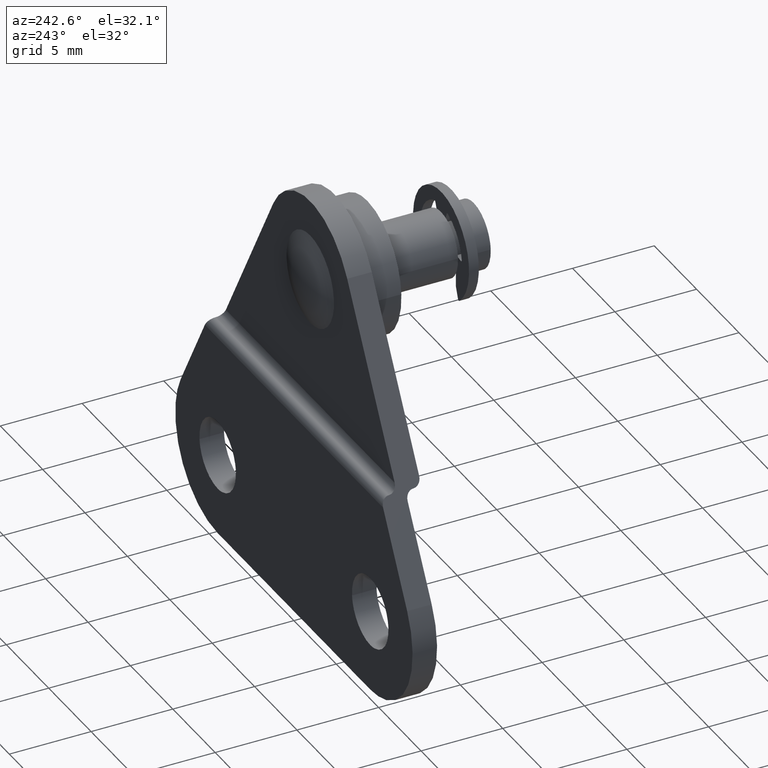
[diagram: clean part render]
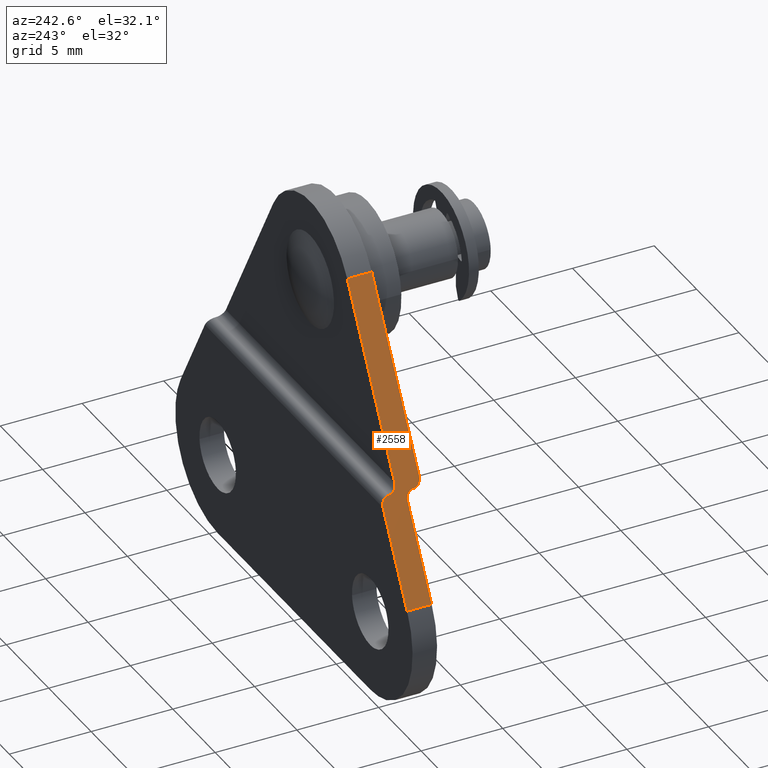
[diagram: same view with one face highlighted and labeled with its STEP entity id]
A machine part, auxiliary view. The second image highlights one B-rep face of the part: STEP entity #2558.
In plain terms, the highlighted face is a freeform B-spline surface patch.
Its self-contained STEP definition (entity closure, byte-faithful):
#2445=CARTESIAN_POINT('',(-13.807429669613089,-2.624874995154463,1.652110020365558));
#2446=CARTESIAN_POINT('',(-3.908327115972653,-2.624874995154463,19.250507471922990));
#2447=CARTESIAN_POINT('',(-13.807429669613089,0.124875062209738,1.652110020365558));
#2448=CARTESIAN_POINT('',(-3.908327115972653,0.124875062209738,19.250507471922990));
#2449=B_SPLINE_SURFACE_WITH_KNOTS('',1,1,((#2445,#2447),(#2446,#2448)),.UNSPECIFIED.,.F.,.F.,.U.,(2,2),(2,2),(0.0,20.191479000570361),(0.0,2.749750057364201),.UNSPECIFIED.);
#2450=CARTESIAN_POINT('',(-4.357876553693835,-2.499999999999945,18.451308210479748));
#2451=VERTEX_POINT('',#2450);
#2452=CARTESIAN_POINT('',(-9.955490004592722,-2.499999999999950,8.500000000000000));
#2453=VERTEX_POINT('',#2452);
#2454=CARTESIAN_POINT('',(-4.357876553693835,-2.499999999999945,18.451308210479748));
#2455=CARTESIAN_POINT('',(-9.955490004592722,-2.499999999999950,8.500000000000000));
#2456=QUASI_UNIFORM_CURVE('',1,(#2454,#2455),.UNSPECIFIED.,.F.,.U.);
#2457=EDGE_CURVE('',#2451,#2453,#2456,.T.);
#2458=ORIENTED_EDGE('',*,*,#2457,.F.);
#2459=CARTESIAN_POINT('',(-4.357876553693835,-1.0,18.451308210479748));
#2460=VERTEX_POINT('',#2459);
#2461=CARTESIAN_POINT('',(-4.357876553693835,-1.0,18.451308210479748));
#2462=CARTESIAN_POINT('',(-4.357876553693835,-2.499999999999945,18.451308210479748));
#2463=QUASI_UNIFORM_CURVE('',1,(#2461,#2462),.UNSPECIFIED.,.F.,.U.);
#2464=EDGE_CURVE('',#2460,#2451,#2463,.T.);
#2465=ORIENTED_EDGE('',*,*,#2464,.F.);
#2466=CARTESIAN_POINT('',(-9.955490004592731,-1.0,8.500000000000000));
#2467=VERTEX_POINT('',#2466);
#2468=CARTESIAN_POINT('',(-9.955490004592731,-1.0,8.500000000000000));
#2469=CARTESIAN_POINT('',(-4.357876553693835,-1.0,18.451308210479748));
#2470=QUASI_UNIFORM_CURVE('',1,(#2468,#2469),.UNSPECIFIED.,.F.,.U.);
#2471=EDGE_CURVE('',#2467,#2460,#2470,.T.);
#2472=ORIENTED_EDGE('',*,*,#2471,.F.);
#2473=CARTESIAN_POINT('',(-10.236740117874000,-0.500000000000000,8.0));
#2474=VERTEX_POINT('',#2473);
#2475=CARTESIAN_POINT('',(-9.955490004592731,-1.0,8.500000000000000));
#2476=CARTESIAN_POINT('',(-10.071987640390626,-1.0,8.292893175332939));
#2477=CARTESIAN_POINT('',(-10.154363896426609,-0.853553338107644,8.146446556921104));
#2478=CARTESIAN_POINT('',(-10.236740152462600,-0.707106676215289,7.999999938509275));
#2479=CARTESIAN_POINT('',(-10.236740117874000,-0.500000000000000,8.0));
#2487=(BOUNDED_CURVE()B_SPLINE_CURVE(2,(#2475,#2476,#2477,#2478,#2479),.UNSPECIFIED.,.F.,.U.)B_SPLINE_CURVE_WITH_KNOTS((3,2,3),(0.0,0.500000000000000,1.0),.UNSPECIFIED.)CURVE()GEOMETRIC_REPRESENTATION_ITEM()RATIONAL_B_SPLINE_CURVE((1.0,0.923879504106271,1.0,0.923879504106271,1.0))REPRESENTATION_ITEM(''));
#2488=EDGE_CURVE('',#2467,#2474,#2487,.T.);
#2489=ORIENTED_EDGE('',*,*,#2488,.T.);
#2490=CARTESIAN_POINT('',(-10.517990231155320,0.0,7.500000000000000));
#2491=VERTEX_POINT('',#2490);
#2492=CARTESIAN_POINT('',(-10.517990231155320,0.0,7.500000000000000));
#2493=CARTESIAN_POINT('',(-10.236740117874080,0.0,8.0));
#2494=CARTESIAN_POINT('',(-10.236740117874000,-0.500000000000000,8.0));
#2502=(BOUNDED_CURVE()B_SPLINE_CURVE(2,(#2492,#2493,#2494),.UNSPECIFIED.,.F.,.U.)CURVE()GEOMETRIC_REPRESENTATION_ITEM()QUASI_UNIFORM_CURVE()RATIONAL_B_SPLINE_CURVE((1.0,0.707106781186489,1.0))REPRESENTATION_ITEM(''));
#2503=EDGE_CURVE('',#2491,#2474,#2502,.T.);
#2504=ORIENTED_EDGE('',*,*,#2503,.F.);
#2505=CARTESIAN_POINT('',(-13.357879499999861,0.0,2.451310000000000));
#2506=VERTEX_POINT('',#2505);
#2507=CARTESIAN_POINT('',(-10.517990231155320,0.0,7.500000000000000));
#2508=CARTESIAN_POINT('',(-13.357879499999861,0.0,2.451310000000000));
#2509=QUASI_UNIFORM_CURVE('',1,(#2507,#2508),.UNSPECIFIED.,.F.,.U.);
#2510=EDGE_CURVE('',#2491,#2506,#2509,.T.);
#2511=ORIENTED_EDGE('',*,*,#2510,.T.);
#2512=CARTESIAN_POINT('',(-13.357879499999861,-1.499999999999946,2.451310000000000));
#2513=VERTEX_POINT('',#2512);
#2514=CARTESIAN_POINT('',(-13.357879499999861,0.0,2.451310000000000));
#2515=CARTESIAN_POINT('',(-13.357879499999861,-1.499999999999946,2.451310000000000));
#2516=QUASI_UNIFORM_CURVE('',1,(#2514,#2515),.UNSPECIFIED.,.F.,.U.);
#2517=EDGE_CURVE('',#2506,#2513,#2516,.T.);
#2518=ORIENTED_EDGE('',*,*,#2517,.T.);
#2519=CARTESIAN_POINT('',(-10.517990231155521,-1.500000000000000,7.500000000000000));
#2520=VERTEX_POINT('',#2519);
#2521=CARTESIAN_POINT('',(-10.517990231155521,-1.500000000000000,7.500000000000000));
#2522=CARTESIAN_POINT('',(-13.357879499999861,-1.499999999999946,2.451310000000000));
#2523=QUASI_UNIFORM_CURVE('',1,(#2521,#2522),.UNSPECIFIED.,.F.,.U.);
#2524=EDGE_CURVE('',#2520,#2513,#2523,.T.);
#2525=ORIENTED_EDGE('',*,*,#2524,.F.);
#2526=CARTESIAN_POINT('',(-10.236740117874120,-1.999999999999915,8.0));
#2527=VERTEX_POINT('',#2526);
#2528=CARTESIAN_POINT('',(-10.517990231155521,-1.500000000000000,7.500000000000000));
#2529=CARTESIAN_POINT('',(-10.401492619815315,-1.499999999999915,7.707106781186532));
#2530=CARTESIAN_POINT('',(-10.319116368844711,-1.646446609406623,7.853553390593255));
#2531=CARTESIAN_POINT('',(-10.236740117874080,-1.792893218813352,8.0));
#2532=CARTESIAN_POINT('',(-10.236740117874120,-1.999999999999915,8.0));
#2540=(BOUNDED_CURVE()B_SPLINE_CURVE(2,(#2528,#2529,#2530,#2531,#2532),.UNSPECIFIED.,.F.,.U.)B_SPLINE_CURVE_WITH_KNOTS((3,2,3),(0.0,0.500000000000000,1.0),.UNSPECIFIED.)CURVE()GEOMETRIC_REPRESENTATION_ITEM()RATIONAL_B_SPLINE_CURVE((1.0,0.923879532511534,1.0,0.923879532511534,1.0))REPRESENTATION_ITEM(''));
#2541=EDGE_CURVE('',#2520,#2527,#2540,.T.);
#2542=ORIENTED_EDGE('',*,*,#2541,.T.);
#2543=CARTESIAN_POINT('',(-9.955490004592731,-2.499999999999915,8.500000000000000));
#2544=CARTESIAN_POINT('',(-10.236740117874051,-2.499999999999915,8.0));
#2545=CARTESIAN_POINT('',(-10.236740117874120,-1.999999999999915,8.0));
#2553=(BOUNDED_CURVE()B_SPLINE_CURVE(2,(#2543,#2544,#2545),.UNSPECIFIED.,.F.,.U.)CURVE()GEOMETRIC_REPRESENTATION_ITEM()QUASI_UNIFORM_CURVE()RATIONAL_B_SPLINE_CURVE((1.0,0.707106781186547,1.0))REPRESENTATION_ITEM(''));
#2554=EDGE_CURVE('',#2453,#2527,#2553,.T.);
#2555=ORIENTED_EDGE('',*,*,#2554,.F.);
#2556=EDGE_LOOP('',(#2458,#2465,#2472,#2489,#2504,#2511,#2518,#2525,#2542,#2555));
#2557=FACE_OUTER_BOUND('',#2556,.T.);
#2558=ADVANCED_FACE('',(#2557),#2449,.T.);